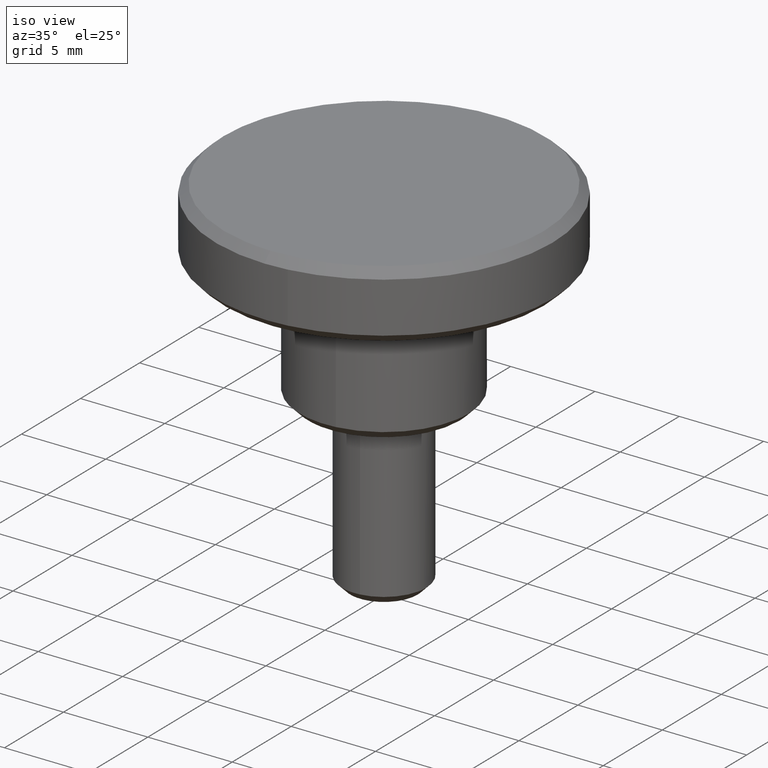
[diagram: clean part render]
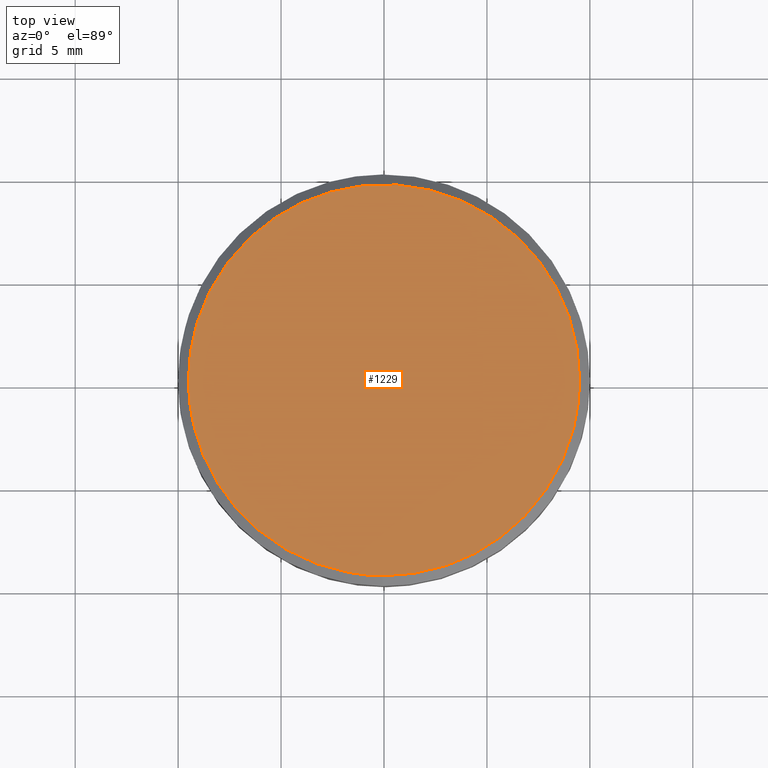
[diagram: tour spotlight — one face highlighted and labeled with its STEP entity id]
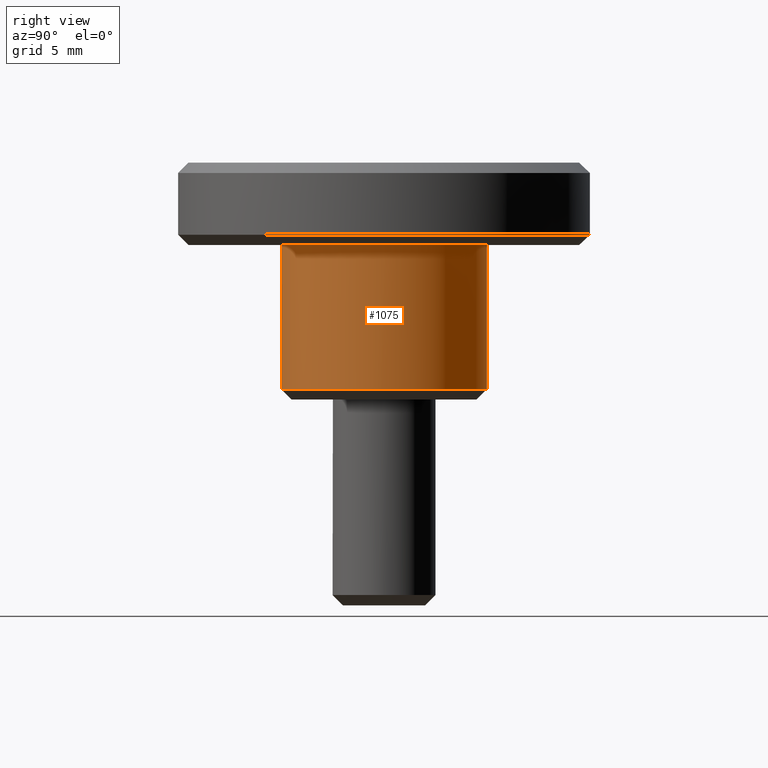
[diagram: tour spotlight — one face highlighted and labeled with its STEP entity id]
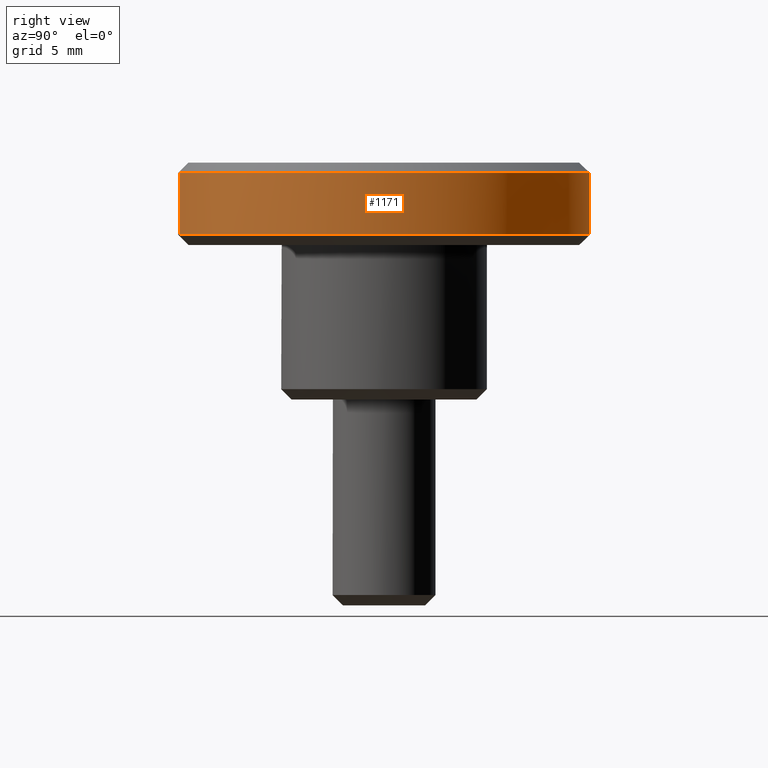
[diagram: tour spotlight — one face highlighted and labeled with its STEP entity id]
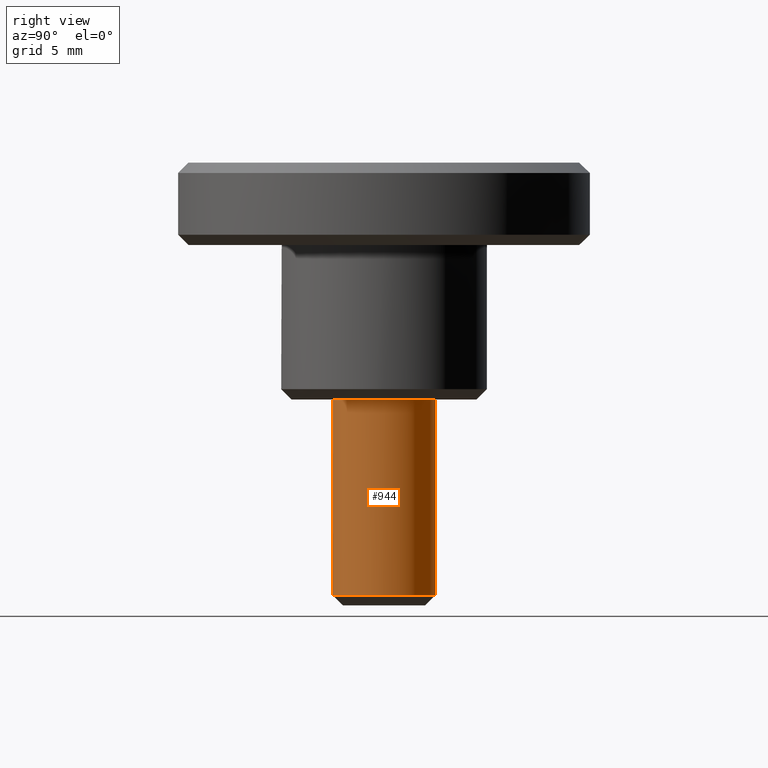
[diagram: tour spotlight — one face highlighted and labeled with its STEP entity id]
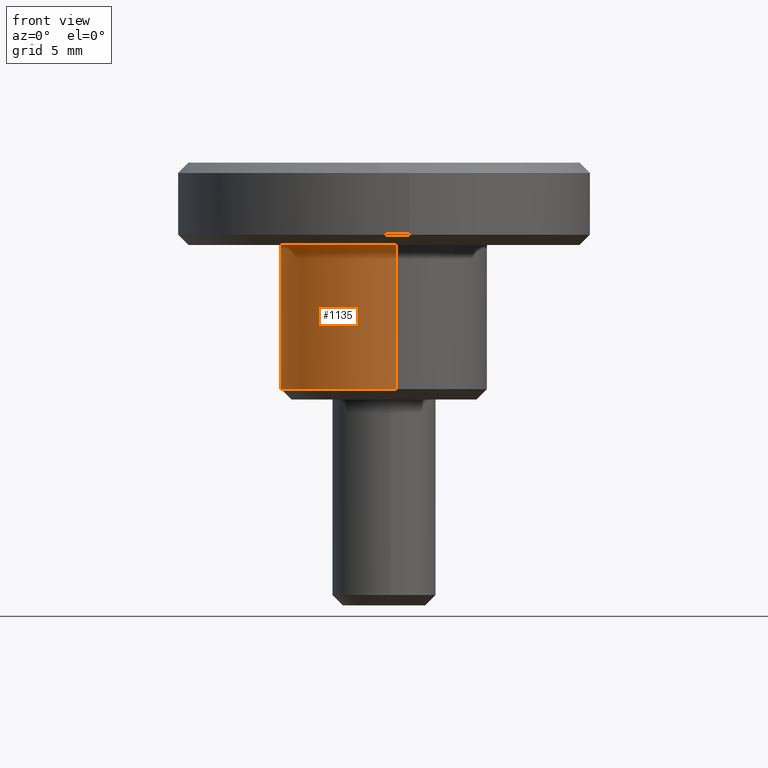
[diagram: tour spotlight — one face highlighted and labeled with its STEP entity id]
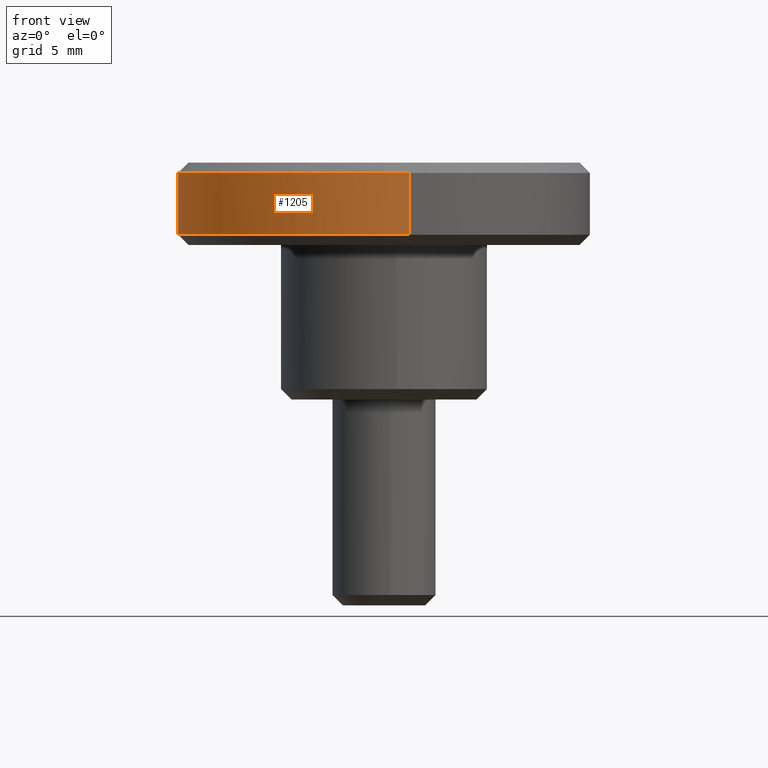
[diagram: tour spotlight — one face highlighted and labeled with its STEP entity id]
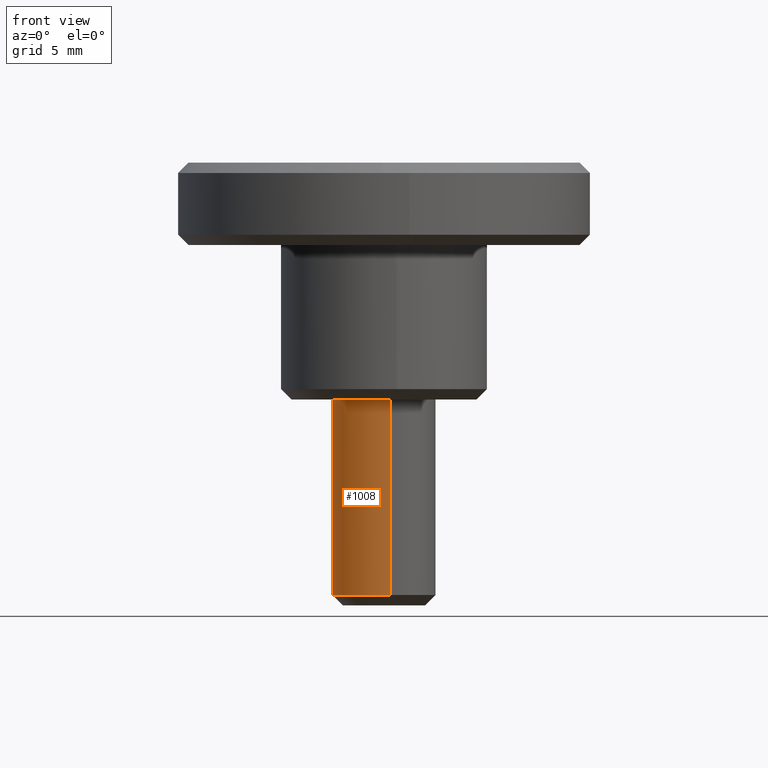
[diagram: tour spotlight — one face highlighted and labeled with its STEP entity id]
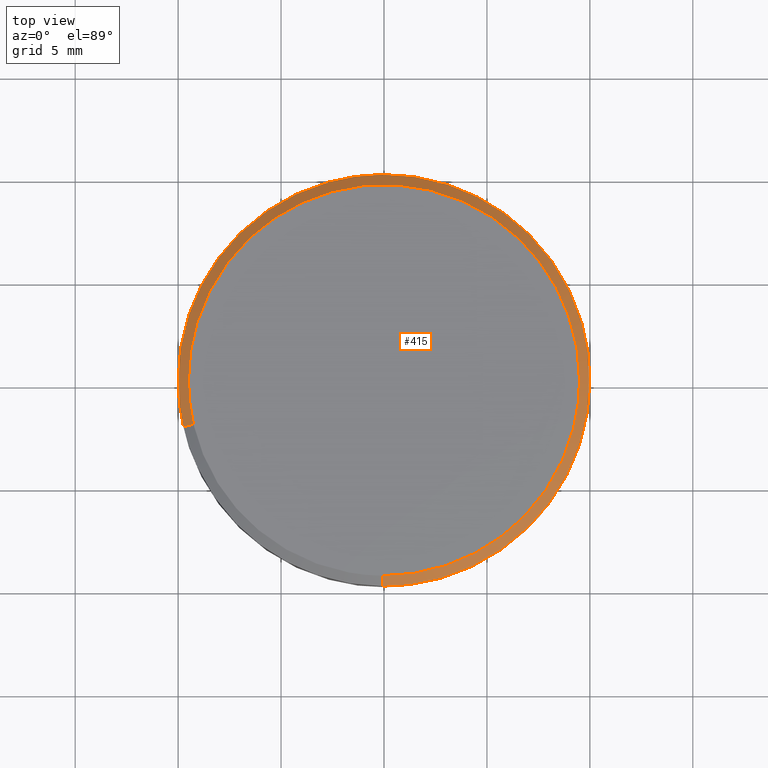
[diagram: tour spotlight — one face highlighted and labeled with its STEP entity id]
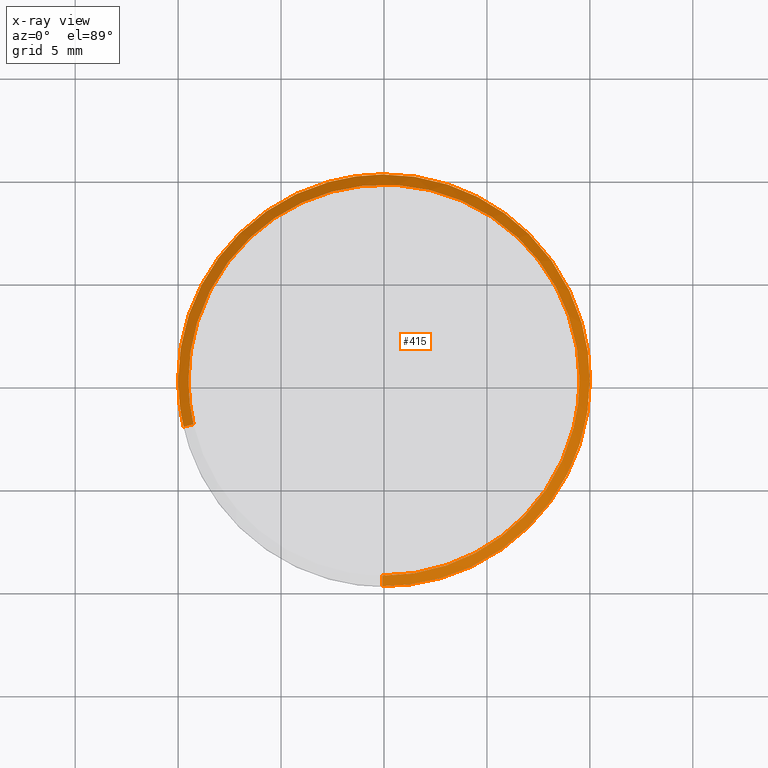
[diagram: x-ray of the same camera — body ghosted, this tour face saturated]
A machine part: a face-by-face anatomy tour. The part has 18 B-rep faces; the first image is the clean iso view, then the 8 largest visible faces are spotlighted one at a time (largest first), each with its STEP entity span.

Face 1 — top view, entity #1229. In plain terms, the highlighted face is a freeform B-spline surface patch.
Definition (entity closure, byte-faithful):
#288=CARTESIAN_POINT('',(-9.255072455196380,-2.143276428524653,11.499999999999879));
#289=VERTEX_POINT('',#288);
#295=CARTESIAN_POINT('',(-9.500000000000000,0.0,11.500000000000121));
#296=VERTEX_POINT('',#295);
#297=CARTESIAN_POINT('',(-9.500000000000000,0.0,11.500000000000121));
#298=CARTESIAN_POINT('',(-9.500000000000000,-1.085633026459575,11.500000000000124));
#299=CARTESIAN_POINT('',(-9.255072455196382,-2.143276428524653,11.499999999999876));
#307=(BOUNDED_CURVE()B_SPLINE_CURVE(2,(#297,#298,#299),.UNSPECIFIED.,.F.,.U.)B_SPLINE_CURVE_WITH_KNOTS((3,3),(0.500000000000000,0.538577028215461),.UNSPECIFIED.)CURVE()GEOMETRIC_REPRESENTATION_ITEM()RATIONAL_B_SPLINE_CURVE((1.0,0.954804200134865,0.923556557442672))REPRESENTATION_ITEM(''));
#308=EDGE_CURVE('',#296,#289,#307,.T.);
#310=CARTESIAN_POINT('',(9.500000000000000,0.0,11.500000000000121));
#311=VERTEX_POINT('',#310);
#312=CARTESIAN_POINT('',(9.500000000000000,0.0,11.500000000000121));
#313=CARTESIAN_POINT('',(9.500000000000000,9.500000000000000,11.500000000000119));
#314=CARTESIAN_POINT('',(0.0,9.500000000000000,11.500000000000121));
#315=CARTESIAN_POINT('',(-9.500000000000000,9.500000000000000,11.500000000000119));
#316=CARTESIAN_POINT('',(-9.500000000000000,0.0,11.500000000000121));
#324=(BOUNDED_CURVE()B_SPLINE_CURVE(2,(#312,#313,#314,#315,#316),.UNSPECIFIED.,.F.,.U.)B_SPLINE_CURVE_WITH_KNOTS((3,2,3),(0.0,0.250000000000000,0.500000000000000),.UNSPECIFIED.)CURVE()GEOMETRIC_REPRESENTATION_ITEM()RATIONAL_B_SPLINE_CURVE((1.0,0.707106781186548,1.0,0.707106781186548,1.0))REPRESENTATION_ITEM(''));
#325=EDGE_CURVE('',#311,#296,#324,.T.);
#327=CARTESIAN_POINT('',(-0.082902087252672,-9.499638269111923,11.499999999997639));
#328=VERTEX_POINT('',#327);
#329=CARTESIAN_POINT('',(-0.082902087252672,-9.499638269111923,11.499999999997637));
#330=CARTESIAN_POINT('',(-0.041451832814764,-9.500000000000000,11.500000000000124));
#331=CARTESIAN_POINT('',(0.0,-9.500000000000000,11.500000000000121));
#332=CARTESIAN_POINT('',(9.500000000000000,-9.500000000000000,11.500000000000119));
#333=CARTESIAN_POINT('',(9.500000000000000,0.0,11.500000000000121));
#341=(BOUNDED_CURVE()B_SPLINE_CURVE(2,(#329,#330,#331,#332,#333),.UNSPECIFIED.,.F.,.U.)B_SPLINE_CURVE_WITH_KNOTS((3,2,3),(0.748460105664342,0.750000000000000,1.0),.UNSPECIFIED.)CURVE()GEOMETRIC_REPRESENTATION_ITEM()RATIONAL_B_SPLINE_CURVE((0.996414028098852,0.998195901565586,1.0,0.707106781186548,1.0))REPRESENTATION_ITEM(''));
#342=EDGE_CURVE('',#328,#311,#341,.T.);
#444=CARTESIAN_POINT('',(-9.255072455196380,-2.143276428524653,11.499999999999874));
#445=CARTESIAN_POINT('',(-7.566620975602279,-9.434328843759149,11.500000000000119));
#446=CARTESIAN_POINT('',(-0.082902087252672,-9.499638269111923,11.499999999997639));
#454=(BOUNDED_CURVE()B_SPLINE_CURVE(2,(#444,#445,#446),.UNSPECIFIED.,.F.,.U.)B_SPLINE_CURVE_WITH_KNOTS((3,3),(0.538577028215460,0.748460105664342),.UNSPECIFIED.)CURVE()GEOMETRIC_REPRESENTATION_ITEM()RATIONAL_B_SPLINE_CURVE((0.923556557442673,0.753549905436432,0.996414028098854))REPRESENTATION_ITEM(''));
#455=EDGE_CURVE('',#289,#328,#454,.T.);
#1218=CARTESIAN_POINT('',(-10.449049963174311,-10.448670594845110,11.500000000000121));
#1219=CARTESIAN_POINT('',(10.449050472794029,-10.448670594845110,11.500000000000121));
#1220=CARTESIAN_POINT('',(-10.449049963174311,10.449032424841221,11.500000000000121));
#1221=CARTESIAN_POINT('',(10.449050472794029,10.449032424841221,11.500000000000121));
#1222=B_SPLINE_SURFACE_WITH_KNOTS('',1,1,((#1218,#1220),(#1219,#1221)),.UNSPECIFIED.,.F.,.F.,.U.,(2,2),(2,2),(0.0,20.898100435968342),(0.0,20.897703019686329),.UNSPECIFIED.);
#1223=ORIENTED_EDGE('',*,*,#325,.T.);
#1224=ORIENTED_EDGE('',*,*,#308,.T.);
#1225=ORIENTED_EDGE('',*,*,#455,.T.);
#1226=ORIENTED_EDGE('',*,*,#342,.T.);
#1227=EDGE_LOOP('',(#1223,#1224,#1225,#1226));
#1228=FACE_OUTER_BOUND('',#1227,.T.);
#1229=ADVANCED_FACE('',(#1228),#1222,.T.);

Face 2 — right view, entity #1075. In plain terms, the highlighted face is a freeform B-spline surface patch.
Definition (entity closure, byte-faithful):
#701=CARTESIAN_POINT('',(0.620639326116273,-4.961331154728281,0.499999999999940));
#702=VERTEX_POINT('',#701);
#759=CARTESIAN_POINT('',(-0.043630800128547,4.999809631702245,0.499999999999251));
#760=VERTEX_POINT('',#759);
#766=CARTESIAN_POINT('',(5.0,0.0,0.499999999999945));
#767=VERTEX_POINT('',#766);
#768=CARTESIAN_POINT('',(5.0,0.0,0.499999999999945));
#769=CARTESIAN_POINT('',(5.000000000000001,5.000000000000001,0.499999999999945));
#770=CARTESIAN_POINT('',(0.0,5.0,0.499999999999945));
#771=CARTESIAN_POINT('',(-0.021815815368240,5.000000000000001,0.499999999999945));
#772=CARTESIAN_POINT('',(-0.043630800128547,4.999809631702246,0.499999999999251));
#780=(BOUNDED_CURVE()B_SPLINE_CURVE(2,(#768,#769,#770,#771,#772),.UNSPECIFIED.,.F.,.U.)B_SPLINE_CURVE_WITH_KNOTS((3,2,3),(0.500000000000000,0.750000000000000,0.751539828195666),.UNSPECIFIED.)CURVE()GEOMETRIC_REPRESENTATION_ITEM()RATIONAL_B_SPLINE_CURVE((1.0,0.707106781186548,1.0,0.998195979053407,0.996414181165367))REPRESENTATION_ITEM(''));
#781=EDGE_CURVE('',#767,#760,#780,.T.);
#783=CARTESIAN_POINT('',(0.620639326116273,-4.961331154728281,0.499999999999940));
#784=CARTESIAN_POINT('',(5.000000000000001,-4.413494227686669,0.499999999999945));
#785=CARTESIAN_POINT('',(5.0,0.0,0.499999999999945));
#793=(BOUNDED_CURVE()B_SPLINE_CURVE(2,(#783,#784,#785),.UNSPECIFIED.,.F.,.U.)B_SPLINE_CURVE_WITH_KNOTS((3,3),(0.271473882450313,0.500000000000000),.UNSPECIFIED.)CURVE()GEOMETRIC_REPRESENTATION_ITEM()RATIONAL_B_SPLINE_CURVE((0.954005520552827,0.732264999391723,1.0))REPRESENTATION_ITEM(''));
#794=EDGE_CURVE('',#702,#767,#793,.T.);
#1009=CARTESIAN_POINT('',(0.620640010399146,-4.961331069127693,0.324999999999943));
#1010=CARTESIAN_POINT('',(5.038664152512223,-4.408656290666105,0.324999999999943));
#1011=CARTESIAN_POINT('',(4.999809615320855,0.043632677491869,0.324999999999944));
#1012=CARTESIAN_POINT('',(4.956176937828985,5.043442292812725,0.324999999999944));
#1013=CARTESIAN_POINT('',(-0.043632677491869,4.999809615320855,0.324999999999944));
#1014=CARTESIAN_POINT('',(0.620640010399146,-4.961331069127693,7.679375000000002));
#1015=CARTESIAN_POINT('',(5.038664152512223,-4.408656290666105,7.679375000000002));
#1016=CARTESIAN_POINT('',(4.999809615320855,0.043632677491869,7.679375000000003));
#1017=CARTESIAN_POINT('',(4.956176937828985,5.043442292812725,7.679375000000004));
#1018=CARTESIAN_POINT('',(-0.043632677491869,4.999809615320855,7.679375000000003));
#1026=(BOUNDED_SURFACE()B_SPLINE_SURFACE(2,1,((#1009,#1014),(#1010,#1015),(#1011,#1016),(#1012,#1017),(#1013,#1018)),.UNSPECIFIED.,.F.,.F.,.U.)B_SPLINE_SURFACE_WITH_KNOTS((3,2,3),(2,2),(0.0,7.621529547664946,15.905800795126851),(0.0,7.354375000000061),.UNSPECIFIED.)GEOMETRIC_REPRESENTATION_ITEM()RATIONAL_B_SPLINE_SURFACE(((0.956886118190660,0.956886118190660),(0.730538238691624,0.730538238691624),(1.0,1.0),(0.707106781186548,0.707106781186548),(1.0,1.0)))REPRESENTATION_ITEM('')SURFACE());
#1027=ORIENTED_EDGE('',*,*,#794,.T.);
#1028=ORIENTED_EDGE('',*,*,#781,.T.);
#1029=CARTESIAN_POINT('',(-0.043628661551656,4.999809650364210,7.500000000000000));
#1030=VERTEX_POINT('',#1029);
#1031=CARTESIAN_POINT('',(-0.043630800128547,4.999809631702245,0.499999999999251));
#1032=CARTESIAN_POINT('',(-0.043628661551656,4.999809650364210,7.500000000000000));
#1033=QUASI_UNIFORM_CURVE('',1,(#1031,#1032),.UNSPECIFIED.,.F.,.U.);
#1034=EDGE_CURVE('',#760,#1030,#1033,.T.);
#1035=ORIENTED_EDGE('',*,*,#1034,.T.);
#1036=CARTESIAN_POINT('',(5.0,0.0,7.500000000000000));
#1037=VERTEX_POINT('',#1036);
#1038=CARTESIAN_POINT('',(-0.043628661551656,4.999809650364210,7.500000000000000));
#1039=CARTESIAN_POINT('',(-0.021814746018728,5.0,7.500000000000000));
#1040=CARTESIAN_POINT('',(0.0,5.0,7.500000000000000));
#1041=CARTESIAN_POINT('',(5.000000000000001,5.000000000000001,7.500000000000000));
#1042=CARTESIAN_POINT('',(5.0,0.0,7.500000000000000));
#1050=(BOUNDED_CURVE()B_SPLINE_CURVE(2,(#1038,#1039,#1040,#1041,#1042),.UNSPECIFIED.,.F.,.U.)B_SPLINE_CURVE_WITH_KNOTS((3,2,3),(0.248460247146196,0.250000000000000,0.500000000000000),.UNSPECIFIED.)CURVE()GEOMETRIC_REPRESENTATION_ITEM()RATIONAL_B_SPLINE_CURVE((0.996414355527691,0.998196067321889,1.0,0.707106781186548,1.0))REPRESENTATION_ITEM(''));
#1051=EDGE_CURVE('',#1030,#1037,#1050,.T.);
#1052=ORIENTED_EDGE('',*,*,#1051,.T.);
#1053=CARTESIAN_POINT('',(0.620634546352657,-4.961331752649010,7.500000000000000));
#1054=VERTEX_POINT('',#1053);
#1055=CARTESIAN_POINT('',(5.0,0.0,7.500000000000000));
#1056=CARTESIAN_POINT('',(5.0,-4.413497899335222,7.500000000000000));
#1057=CARTESIAN_POINT('',(0.620634546352657,-4.961331752649010,7.500000000000000));
#1065=(BOUNDED_CURVE()B_SPLINE_CURVE(2,(#1055,#1056,#1057),.UNSPECIFIED.,.F.,.U.)B_SPLINE_CURVE_WITH_KNOTS((3,3),(0.500000000000000,0.728526256763575),.UNSPECIFIED.)CURVE()GEOMETRIC_REPRESENTATION_ITEM()RATIONAL_B_SPLINE_CURVE((1.0,0.732264836292508,0.954005790713464))REPRESENTATION_ITEM(''));
#1066=EDGE_CURVE('',#1037,#1054,#1065,.T.);
#1067=ORIENTED_EDGE('',*,*,#1066,.T.);
#1068=CARTESIAN_POINT('',(0.620639326116273,-4.961331154728281,0.499999999999940));
#1069=CARTESIAN_POINT('',(0.620634546352657,-4.961331752649010,7.500000000000000));
#1070=QUASI_UNIFORM_CURVE('',1,(#1068,#1069),.UNSPECIFIED.,.F.,.U.);
#1071=EDGE_CURVE('',#702,#1054,#1070,.T.);
#1072=ORIENTED_EDGE('',*,*,#1071,.F.);
#1073=EDGE_LOOP('',(#1027,#1028,#1035,#1052,#1067,#1072));
#1074=FACE_OUTER_BOUND('',#1073,.T.);
#1075=ADVANCED_FACE('',(#1074),#1026,.T.);

Face 3 — right view, entity #1171. In plain terms, the highlighted face is a freeform B-spline surface patch.
Definition (entity closure, byte-faithful):
#351=CARTESIAN_POINT('',(1.241278290749142,-9.922662354676380,11.000000000000099));
#352=VERTEX_POINT('',#351);
#368=CARTESIAN_POINT('',(10.0,0.0,11.000000000000121));
#369=VERTEX_POINT('',#368);
#370=CARTESIAN_POINT('',(10.0,0.0,11.000000000000121));
#371=CARTESIAN_POINT('',(9.999999999999998,-8.826987552511923,11.000000000000119));
#372=CARTESIAN_POINT('',(1.241278290749142,-9.922662354676380,11.000000000000099));
#380=(BOUNDED_CURVE()B_SPLINE_CURVE(2,(#370,#371,#372),.UNSPECIFIED.,.F.,.U.)B_SPLINE_CURVE_WITH_KNOTS((3,3),(0.500000000000000,0.728526100433277),.UNSPECIFIED.)CURVE()GEOMETRIC_REPRESENTATION_ITEM()RATIONAL_B_SPLINE_CURVE((1.0,0.732265019444844,0.954005487336481))REPRESENTATION_ITEM(''));
#381=EDGE_CURVE('',#369,#352,#380,.T.);
#383=CARTESIAN_POINT('',(-0.087258805515290,9.999619287793767,11.000000000000149));
#384=VERTEX_POINT('',#383);
#385=CARTESIAN_POINT('',(-0.087258805515290,9.999619287793767,11.000000000000151));
#386=CARTESIAN_POINT('',(-0.043630233285768,10.000000000000002,11.000000000000121));
#387=CARTESIAN_POINT('',(0.0,10.0,11.000000000000121));
#388=CARTESIAN_POINT('',(10.000000000000002,10.000000000000002,11.000000000000119));
#389=CARTESIAN_POINT('',(10.0,0.0,11.000000000000121));
#397=(BOUNDED_CURVE()B_SPLINE_CURVE(2,(#385,#386,#387,#388,#389),.UNSPECIFIED.,.F.,.U.)B_SPLINE_CURVE_WITH_KNOTS((3,2,3),(0.248460221033578,0.250000000000000,0.500000000000000),.UNSPECIFIED.)CURVE()GEOMETRIC_REPRESENTATION_ITEM()RATIONAL_B_SPLINE_CURVE((0.996414295095714,0.998196036729054,1.0,0.707106781186548,1.0))REPRESENTATION_ITEM(''));
#398=EDGE_CURVE('',#384,#369,#397,.T.);
#562=CARTESIAN_POINT('',(-0.087258337325771,9.999619291878959,8.000000000000119));
#563=VERTEX_POINT('',#562);
#577=CARTESIAN_POINT('',(10.0,0.0,8.000000000000119));
#578=VERTEX_POINT('',#577);
#579=CARTESIAN_POINT('',(10.0,0.0,8.000000000000119));
#580=CARTESIAN_POINT('',(10.000000000000002,10.000000000000002,8.000000000000119));
#581=CARTESIAN_POINT('',(0.0,10.0,8.000000000000119));
#582=CARTESIAN_POINT('',(-0.043629999177642,10.000000000000002,8.000000000000119));
#583=CARTESIAN_POINT('',(-0.087258337325771,9.999619291878959,8.000000000000119));
#591=(BOUNDED_CURVE()B_SPLINE_CURVE(2,(#579,#580,#581,#582,#583),.UNSPECIFIED.,.F.,.U.)B_SPLINE_CURVE_WITH_KNOTS((3,2,3),(0.500000000000000,0.750000000000000,0.751539770719286),.UNSPECIFIED.)CURVE()GEOMETRIC_REPRESENTATION_ITEM()RATIONAL_B_SPLINE_CURVE((1.0,0.707106781186548,1.0,0.998196046391175,0.996414314181917))REPRESENTATION_ITEM(''));
#592=EDGE_CURVE('',#578,#563,#591,.T.);
#594=CARTESIAN_POINT('',(8.188661127107650,-5.739845724877757,8.000000000000160));
#595=VERTEX_POINT('',#594);
#596=CARTESIAN_POINT('',(8.188661127107650,-5.739845724877757,8.000000000000160));
#597=CARTESIAN_POINT('',(10.000000000000002,-3.155727452816521,8.000000000000119));
#598=CARTESIAN_POINT('',(10.0,0.0,8.000000000000119));
#606=(BOUNDED_CURVE()B_SPLINE_CURVE(2,(#596,#597,#598),.UNSPECIFIED.,.F.,.U.)B_SPLINE_CURVE_WITH_KNOTS((3,3),(0.401326273797088,0.500000000000000),.UNSPECIFIED.)CURVE()GEOMETRIC_REPRESENTATION_ITEM()RATIONAL_B_SPLINE_CURVE((0.860049271925852,0.884396538880448,1.0))REPRESENTATION_ITEM(''));
#607=EDGE_CURVE('',#595,#578,#606,.T.);
#645=CARTESIAN_POINT('',(1.241273483490002,-9.922662956038625,8.000000000000119));
#646=VERTEX_POINT('',#645);
#647=CARTESIAN_POINT('',(1.241273483490001,-9.922662956038625,8.000000000000119));
#648=CARTESIAN_POINT('',(5.642649241165003,-9.372073760067680,8.000000000000121));
#649=CARTESIAN_POINT('',(8.188661127107650,-5.739845724877757,8.000000000000160));
#657=(BOUNDED_CURVE()B_SPLINE_CURVE(2,(#647,#648,#649),.UNSPECIFIED.,.F.,.U.)B_SPLINE_CURVE_WITH_KNOTS((3,3),(0.271473817862368,0.401326273797088),.UNSPECIFIED.)CURVE()GEOMETRIC_REPRESENTATION_ITEM()RATIONAL_B_SPLINE_CURVE((0.954005645893153,0.828008803495067,0.860049271925852))REPRESENTATION_ITEM(''));
#658=EDGE_CURVE('',#646,#595,#657,.T.);
#1136=CARTESIAN_POINT('',(1.241280020798293,-9.922662138255385,7.925000000000117));
#1137=CARTESIAN_POINT('',(10.077328305024446,-8.817312581332210,7.925000000000119));
#1138=CARTESIAN_POINT('',(9.999619230641709,0.087265354983739,7.925000000000117));
#1139=CARTESIAN_POINT('',(9.912353875657971,10.086884585625448,7.925000000000117));
#1140=CARTESIAN_POINT('',(-0.087265354983739,9.999619230641709,7.925000000000117));
#1141=CARTESIAN_POINT('',(1.241280020798293,-9.922662138255385,11.076875000000120));
#1142=CARTESIAN_POINT('',(10.077328305024446,-8.817312581332210,11.076875000000122));
#1143=CARTESIAN_POINT('',(9.999619230641709,0.087265354983739,11.076875000000120));
#1144=CARTESIAN_POINT('',(9.912353875657971,10.086884585625448,11.076875000000122));
#1145=CARTESIAN_POINT('',(-0.087265354983739,9.999619230641709,11.076875000000120));
#1153=(BOUNDED_SURFACE()B_SPLINE_SURFACE(2,1,((#1136,#1141),(#1137,#1142),(#1138,#1143),(#1139,#1144),(#1140,#1145)),.UNSPECIFIED.,.F.,.F.,.U.)B_SPLINE_SURFACE_WITH_KNOTS((3,2,3),(2,2),(0.0,15.243059095329890,31.811601590253691),(0.0,3.151875000000005),.UNSPECIFIED.)GEOMETRIC_REPRESENTATION_ITEM()RATIONAL_B_SPLINE_SURFACE(((0.956886118190660,0.956886118190660),(0.730538238691624,0.730538238691624),(1.0,1.0),(0.707106781186548,0.707106781186548),(1.0,1.0)))REPRESENTATION_ITEM('')SURFACE());
#1154=ORIENTED_EDGE('',*,*,#381,.T.);
#1155=CARTESIAN_POINT('',(1.241273483490002,-9.922662956038625,8.000000000000119));
#1156=CARTESIAN_POINT('',(1.241278290749142,-9.922662354676380,11.000000000000099));
#1157=QUASI_UNIFORM_CURVE('',1,(#1155,#1156),.UNSPECIFIED.,.F.,.U.);
#1158=EDGE_CURVE('',#646,#352,#1157,.T.);
#1159=ORIENTED_EDGE('',*,*,#1158,.F.);
#1160=ORIENTED_EDGE('',*,*,#658,.T.);
#1161=ORIENTED_EDGE('',*,*,#607,.T.);
#1162=ORIENTED_EDGE('',*,*,#592,.T.);
#1163=CARTESIAN_POINT('',(-0.087258337325771,9.999619291878959,8.000000000000119));
#1164=CARTESIAN_POINT('',(-0.087258805515290,9.999619287793767,11.000000000000149));
#1165=QUASI_UNIFORM_CURVE('',1,(#1163,#1164),.UNSPECIFIED.,.F.,.U.);
#1166=EDGE_CURVE('',#563,#384,#1165,.T.);
#1167=ORIENTED_EDGE('',*,*,#1166,.T.);
#1168=ORIENTED_EDGE('',*,*,#398,.T.);
#1169=EDGE_LOOP('',(#1154,#1159,#1160,#1161,#1162,#1167,#1168));
#1170=FACE_OUTER_BOUND('',#1169,.T.);
#1171=ADVANCED_FACE('',(#1170),#1153,.T.);

Face 4 — right view, entity #944. In plain terms, the highlighted face is a freeform B-spline surface patch.
Definition (entity closure, byte-faithful):
#68=CARTESIAN_POINT('',(0.310320005214538,-2.480665534561974,-9.499999999999998));
#69=VERTEX_POINT('',#68);
#126=CARTESIAN_POINT('',(-0.021814068054723,2.499904827470244,-9.500000000002059));
#127=VERTEX_POINT('',#126);
#133=CARTESIAN_POINT('',(2.500000000000000,0.0,-9.500000000000000));
#134=VERTEX_POINT('',#133);
#135=CARTESIAN_POINT('',(2.500000000000000,0.0,-9.500000000000000));
#136=CARTESIAN_POINT('',(2.500000000000000,2.500000000000000,-9.500000000000000));
#137=CARTESIAN_POINT('',(0.0,2.500000000000000,-9.500000000000000));
#138=CARTESIAN_POINT('',(-0.010907241641329,2.500000000000000,-9.500000000000000));
#139=CARTESIAN_POINT('',(-0.021814068054723,2.499904827470244,-9.500000000002059));
#147=(BOUNDED_CURVE()B_SPLINE_CURVE(2,(#135,#136,#137,#138,#139),.UNSPECIFIED.,.F.,.U.)B_SPLINE_CURVE_WITH_KNOTS((3,2,3),(0.500000000000000,0.750000000000000,0.751539734342525),.UNSPECIFIED.)CURVE()GEOMETRIC_REPRESENTATION_ITEM()RATIONAL_B_SPLINE_CURVE((1.0,0.707106781186548,1.0,0.998196089009201,0.996414398368029))REPRESENTATION_ITEM(''));
#148=EDGE_CURVE('',#134,#127,#147,.T.);
#150=CARTESIAN_POINT('',(0.310320005214538,-2.480665534561974,-9.499999999999998));
#151=CARTESIAN_POINT('',(2.500000000000001,-2.206746500348739,-9.500000000000000));
#152=CARTESIAN_POINT('',(2.500000000000000,0.0,-9.500000000000000));
#160=(BOUNDED_CURVE()B_SPLINE_CURVE(2,(#150,#151,#152),.UNSPECIFIED.,.F.,.U.)B_SPLINE_CURVE_WITH_KNOTS((3,3),(0.271473928972736,0.500000000000000),.UNSPECIFIED.)CURVE()GEOMETRIC_REPRESENTATION_ITEM()RATIONAL_B_SPLINE_CURVE((0.954005430270770,0.732265053896132,1.0))REPRESENTATION_ITEM(''));
#161=EDGE_CURVE('',#69,#134,#160,.T.);
#878=CARTESIAN_POINT('',(0.310320005199573,-2.480665534563847,-9.737500000000001));
#879=CARTESIAN_POINT('',(2.519332076256112,-2.204328145333053,-9.737500000000003));
#880=CARTESIAN_POINT('',(2.499904807660427,0.021816338745935,-9.737500000000003));
#881=CARTESIAN_POINT('',(2.478088468914493,2.521721146406362,-9.737500000000003));
#882=CARTESIAN_POINT('',(-0.021816338745935,2.499904807660427,-9.737500000000003));
#883=CARTESIAN_POINT('',(0.310320005199573,-2.480665534563847,0.243437500000001));
#884=CARTESIAN_POINT('',(2.519332076256112,-2.204328145333053,0.243437500000001));
#885=CARTESIAN_POINT('',(2.499904807660427,0.021816338745935,0.243437500000001));
#886=CARTESIAN_POINT('',(2.478088468914493,2.521721146406362,0.243437500000001));
#887=CARTESIAN_POINT('',(-0.021816338745935,2.499904807660427,0.243437500000001));
#895=(BOUNDED_SURFACE()B_SPLINE_SURFACE(2,1,((#878,#883),(#879,#884),(#880,#885),(#881,#886),(#882,#887)),.UNSPECIFIED.,.F.,.F.,.U.)B_SPLINE_SURFACE_WITH_KNOTS((3,2,3),(2,2),(0.0,3.810764773832473,7.952900397563423),(0.0,9.980937500000005),.UNSPECIFIED.)GEOMETRIC_REPRESENTATION_ITEM()RATIONAL_B_SPLINE_SURFACE(((0.956886118190660,0.956886118190660),(0.730538238691624,0.730538238691624),(1.0,1.0),(0.707106781186548,0.707106781186548),(1.0,1.0)))REPRESENTATION_ITEM('')SURFACE());
#896=ORIENTED_EDGE('',*,*,#161,.T.);
#897=ORIENTED_EDGE('',*,*,#148,.T.);
#898=CARTESIAN_POINT('',(-0.021812366237410,2.499904842321671,-3.747003E-016));
#899=VERTEX_POINT('',#898);
#900=CARTESIAN_POINT('',(-0.021814068054723,2.499904827470244,-9.500000000002059));
#901=CARTESIAN_POINT('',(-0.021812366237410,2.499904842321671,-3.747003E-016));
#902=QUASI_UNIFORM_CURVE('',1,(#900,#901),.UNSPECIFIED.,.F.,.U.);
#903=EDGE_CURVE('',#127,#899,#902,.T.);
#904=ORIENTED_EDGE('',*,*,#903,.T.);
#905=CARTESIAN_POINT('',(2.500000000000000,0.0,0.0));
#906=VERTEX_POINT('',#905);
#907=CARTESIAN_POINT('',(-0.021812366237410,2.499904842321671,-3.747003E-016));
#908=CARTESIAN_POINT('',(-0.010906390684075,2.500000000000000,0.0));
#909=CARTESIAN_POINT('',(0.0,2.500000000000000,0.0));
#910=CARTESIAN_POINT('',(2.500000000000000,2.500000000000000,0.0));
#911=CARTESIAN_POINT('',(2.500000000000000,0.0,0.0));
#919=(BOUNDED_CURVE()B_SPLINE_CURVE(2,(#907,#908,#909,#910,#911),.UNSPECIFIED.,.F.,.U.)B_SPLINE_CURVE_WITH_KNOTS((3,2,3),(0.248460385567234,0.250000000000000,0.500000000000000),.UNSPECIFIED.)CURVE()GEOMETRIC_REPRESENTATION_ITEM()RATIONAL_B_SPLINE_CURVE((0.996414675873302,0.998196229492223,1.0,0.707106781186548,1.0))REPRESENTATION_ITEM(''));
#920=EDGE_CURVE('',#899,#906,#919,.T.);
#921=ORIENTED_EDGE('',*,*,#920,.T.);
#922=CARTESIAN_POINT('',(0.310320005215607,-2.480665534561841,1.740369E-016));
#923=VERTEX_POINT('',#922);
#924=CARTESIAN_POINT('',(2.500000000000000,0.0,0.0));
#925=CARTESIAN_POINT('',(2.499999999999999,-2.206746500346836,0.0));
#926=CARTESIAN_POINT('',(0.310320005215607,-2.480665534561841,1.740369E-016));
#934=(BOUNDED_CURVE()B_SPLINE_CURVE(2,(#924,#925,#926),.UNSPECIFIED.,.F.,.U.)B_SPLINE_CURVE_WITH_KNOTS((3,3),(0.500000000000000,0.728526071027120),.UNSPECIFIED.)CURVE()GEOMETRIC_REPRESENTATION_ITEM()RATIONAL_B_SPLINE_CURVE((1.0,0.732265053896301,0.954005430270490))REPRESENTATION_ITEM(''));
#935=EDGE_CURVE('',#906,#923,#934,.T.);
#936=ORIENTED_EDGE('',*,*,#935,.T.);
#937=CARTESIAN_POINT('',(0.310320005214538,-2.480665534561974,-9.499999999999998));
#938=CARTESIAN_POINT('',(0.310320005215607,-2.480665534561841,1.740369E-016));
#939=QUASI_UNIFORM_CURVE('',1,(#937,#938),.UNSPECIFIED.,.F.,.U.);
#940=EDGE_CURVE('',#69,#923,#939,.T.);
#941=ORIENTED_EDGE('',*,*,#940,.F.);
#942=EDGE_LOOP('',(#896,#897,#904,#921,#936,#941));
#943=FACE_OUTER_BOUND('',#942,.T.);
#944=ADVANCED_FACE('',(#943),#895,.T.);

Face 5 — front view, entity #1135. In plain terms, the highlighted face is a freeform B-spline surface patch.
Definition (entity closure, byte-faithful):
#699=CARTESIAN_POINT('',(-2.021077159942054,-4.573319047864791,0.500000000000183));
#700=VERTEX_POINT('',#699);
#701=CARTESIAN_POINT('',(0.620639326116273,-4.961331154728281,0.499999999999940));
#702=VERTEX_POINT('',#701);
#703=CARTESIAN_POINT('',(-2.021077159942054,-4.573319047864791,0.500000000000183));
#704=CARTESIAN_POINT('',(-1.055578086262365,-4.999999999999999,0.499999999999945));
#705=CARTESIAN_POINT('',(0.0,-5.0,0.499999999999945));
#706=CARTESIAN_POINT('',(0.311523945374245,-4.999999999999999,0.499999999999945));
#707=CARTESIAN_POINT('',(0.620639326116273,-4.961331154728281,0.499999999999940));
#715=(BOUNDED_CURVE()B_SPLINE_CURVE(2,(#703,#704,#705,#706,#707),.UNSPECIFIED.,.F.,.U.)B_SPLINE_CURVE_WITH_KNOTS((3,2,3),(0.181361578459757,0.250000000000000,0.271473882450313),.UNSPECIFIED.)CURVE()GEOMETRIC_REPRESENTATION_ITEM()RATIONAL_B_SPLINE_CURVE((0.883326595751699,0.919585087123215,1.0,0.974841781794825,0.954005520552827))REPRESENTATION_ITEM(''));
#716=EDGE_CURVE('',#700,#702,#715,.T.);
#759=CARTESIAN_POINT('',(-0.043630800128547,4.999809631702245,0.499999999999251));
#760=VERTEX_POINT('',#759);
#817=CARTESIAN_POINT('',(-5.0,0.0,0.499999999999945));
#818=VERTEX_POINT('',#817);
#819=CARTESIAN_POINT('',(-5.0,0.0,0.499999999999945));
#820=CARTESIAN_POINT('',(-5.0,-3.256850012954106,0.499999999999945));
#821=CARTESIAN_POINT('',(-2.021077159942054,-4.573319047864791,0.500000000000183));
#829=(BOUNDED_CURVE()B_SPLINE_CURVE(2,(#819,#820,#821),.UNSPECIFIED.,.F.,.U.)B_SPLINE_CURVE_WITH_KNOTS((3,3),(0.0,0.181361578459757),.UNSPECIFIED.)CURVE()GEOMETRIC_REPRESENTATION_ITEM()RATIONAL_B_SPLINE_CURVE((1.0,0.787521694063333,0.883326595751699))REPRESENTATION_ITEM(''));
#830=EDGE_CURVE('',#818,#700,#829,.T.);
#832=CARTESIAN_POINT('',(-0.043630800128547,4.999809631702246,0.499999999999251));
#833=CARTESIAN_POINT('',(-5.000000000000001,4.956557914168263,0.499999999999945));
#834=CARTESIAN_POINT('',(-5.0,0.0,0.499999999999945));
#842=(BOUNDED_CURVE()B_SPLINE_CURVE(2,(#832,#833,#834),.UNSPECIFIED.,.F.,.U.)B_SPLINE_CURVE_WITH_KNOTS((3,3),(0.751539828195666,1.0),.UNSPECIFIED.)CURVE()GEOMETRIC_REPRESENTATION_ITEM()RATIONAL_B_SPLINE_CURVE((0.996414181165367,0.708910802133141,1.0))REPRESENTATION_ITEM(''));
#843=EDGE_CURVE('',#760,#818,#842,.T.);
#1029=CARTESIAN_POINT('',(-0.043628661551656,4.999809650364210,7.500000000000000));
#1030=VERTEX_POINT('',#1029);
#1031=CARTESIAN_POINT('',(-0.043630800128547,4.999809631702245,0.499999999999251));
#1032=CARTESIAN_POINT('',(-0.043628661551656,4.999809650364210,7.500000000000000));
#1033=QUASI_UNIFORM_CURVE('',1,(#1031,#1032),.UNSPECIFIED.,.F.,.U.);
#1034=EDGE_CURVE('',#760,#1030,#1033,.T.);
#1053=CARTESIAN_POINT('',(0.620634546352657,-4.961331752649010,7.500000000000000));
#1054=VERTEX_POINT('',#1053);
#1068=CARTESIAN_POINT('',(0.620639326116273,-4.961331154728281,0.499999999999940));
#1069=CARTESIAN_POINT('',(0.620634546352657,-4.961331752649010,7.500000000000000));
#1070=QUASI_UNIFORM_CURVE('',1,(#1068,#1069),.UNSPECIFIED.,.F.,.U.);
#1071=EDGE_CURVE('',#702,#1054,#1070,.T.);
#1076=CARTESIAN_POINT('',(-0.043632677491869,4.999809615320855,0.324999999999944));
#1077=CARTESIAN_POINT('',(-5.043442292812725,4.956176937828985,0.324999999999944));
#1078=CARTESIAN_POINT('',(-4.999809615320855,-0.043632677491869,0.324999999999944));
#1079=CARTESIAN_POINT('',(-4.956176937828985,-5.043442292812725,0.324999999999944));
#1080=CARTESIAN_POINT('',(0.043632677491869,-4.999809615320855,0.324999999999944));
#1081=CARTESIAN_POINT('',(0.333250794790868,-4.997282156301378,0.324999999999943));
#1082=CARTESIAN_POINT('',(0.620640010399146,-4.961331069127693,0.324999999999943));
#1083=CARTESIAN_POINT('',(-0.043632677491869,4.999809615320855,7.679375000000003));
#1084=CARTESIAN_POINT('',(-5.043442292812725,4.956176937828985,7.679375000000004));
#1085=CARTESIAN_POINT('',(-4.999809615320855,-0.043632677491869,7.679375000000003));
#1086=CARTESIAN_POINT('',(-4.956176937828985,-5.043442292812725,7.679375000000004));
#1087=CARTESIAN_POINT('',(0.043632677491869,-4.999809615320855,7.679375000000003));
#1088=CARTESIAN_POINT('',(0.333250794790868,-4.997282156301378,7.679375000000003));
#1089=CARTESIAN_POINT('',(0.620640010399146,-4.961331069127693,7.679375000000002));
#1097=(BOUNDED_SURFACE()B_SPLINE_SURFACE(2,1,((#1076,#1083),(#1077,#1084),(#1078,#1085),(#1079,#1086),(#1080,#1087),(#1081,#1088),(#1082,#1089)),.UNSPECIFIED.,.F.,.F.,.U.)B_SPLINE_SURFACE_WITH_KNOTS((3,2,2,3),(2,2),(0.0,8.284271247461899,16.568542494923800,17.231284194720750),(0.0,7.354375000000061),.UNSPECIFIED.)GEOMETRIC_REPRESENTATION_ITEM()RATIONAL_B_SPLINE_SURFACE(((1.0,1.0),(0.707106781186548,0.707106781186548),(1.0,1.0),(0.707106781186548,0.707106781186548),(1.0,1.0),(0.976568542494924,0.976568542494924),(0.956886118190660,0.956886118190660)))REPRESENTATION_ITEM('')SURFACE());
#1098=ORIENTED_EDGE('',*,*,#830,.T.);
#1099=ORIENTED_EDGE('',*,*,#716,.T.);
#1100=ORIENTED_EDGE('',*,*,#1071,.T.);
#1101=CARTESIAN_POINT('',(-5.0,0.0,7.500000000000000));
#1102=VERTEX_POINT('',#1101);
#1103=CARTESIAN_POINT('',(0.620634546352657,-4.961331752649010,7.500000000000000));
#1104=CARTESIAN_POINT('',(0.311521873663028,-5.0,7.500000000000001));
#1105=CARTESIAN_POINT('',(0.0,-5.0,7.500000000000000));
#1106=CARTESIAN_POINT('',(-5.000000000000001,-5.000000000000001,7.500000000000000));
#1107=CARTESIAN_POINT('',(-5.0,0.0,7.500000000000000));
#1115=(BOUNDED_CURVE()B_SPLINE_CURVE(2,(#1103,#1104,#1105,#1106,#1107),.UNSPECIFIED.,.F.,.U.)B_SPLINE_CURVE_WITH_KNOTS((3,2,3),(0.728526256763575,0.750000000000000,1.0),.UNSPECIFIED.)CURVE()GEOMETRIC_REPRESENTATION_ITEM()RATIONAL_B_SPLINE_CURVE((0.954005790713464,0.974841944894039,1.0,0.707106781186548,1.0))REPRESENTATION_ITEM(''));
#1116=EDGE_CURVE('',#1054,#1102,#1115,.T.);
#1117=ORIENTED_EDGE('',*,*,#1116,.T.);
#1118=CARTESIAN_POINT('',(-5.0,0.0,7.500000000000000));
#1119=CARTESIAN_POINT('',(-4.999999999999999,4.956560034326192,7.500000000000000));
#1120=CARTESIAN_POINT('',(-0.043628661551656,4.999809650364210,7.500000000000000));
#1128=(BOUNDED_CURVE()B_SPLINE_CURVE(2,(#1118,#1119,#1120),.UNSPECIFIED.,.F.,.U.)B_SPLINE_CURVE_WITH_KNOTS((3,3),(0.0,0.248460247146196),.UNSPECIFIED.)CURVE()GEOMETRIC_REPRESENTATION_ITEM()RATIONAL_B_SPLINE_CURVE((1.0,0.708910713864659,0.996414355527691))REPRESENTATION_ITEM(''));
#1129=EDGE_CURVE('',#1102,#1030,#1128,.T.);
#1130=ORIENTED_EDGE('',*,*,#1129,.T.);
#1131=ORIENTED_EDGE('',*,*,#1034,.F.);
#1132=ORIENTED_EDGE('',*,*,#843,.T.);
#1133=EDGE_LOOP('',(#1098,#1099,#1100,#1117,#1130,#1131,#1132));
#1134=FACE_OUTER_BOUND('',#1133,.T.);
#1135=ADVANCED_FACE('',(#1134),#1097,.T.);

Face 6 — front view, entity #1205. In plain terms, the highlighted face is a freeform B-spline surface patch.
Definition (entity closure, byte-faithful):
#271=CARTESIAN_POINT('',(-9.742181531784778,-2.256080451086446,10.999999999998970));
#272=VERTEX_POINT('',#271);
#273=CARTESIAN_POINT('',(-10.0,0.0,11.000000000000121));
#274=VERTEX_POINT('',#273);
#275=CARTESIAN_POINT('',(-9.742181531784778,-2.256080451086447,10.999999999998973));
#276=CARTESIAN_POINT('',(-10.000000000000002,-1.142771606807493,11.000000000000124));
#277=CARTESIAN_POINT('',(-10.0,0.0,11.000000000000121));
#285=(BOUNDED_CURVE()B_SPLINE_CURVE(2,(#275,#276,#277),.UNSPECIFIED.,.F.,.U.)B_SPLINE_CURVE_WITH_KNOTS((3,3),(0.961422971784283,1.0),.UNSPECIFIED.)CURVE()GEOMETRIC_REPRESENTATION_ITEM()RATIONAL_B_SPLINE_CURVE((0.923556557442257,0.954804200134566,1.0))REPRESENTATION_ITEM(''));
#286=EDGE_CURVE('',#272,#274,#285,.T.);
#344=CARTESIAN_POINT('',(-0.087265355013846,-9.999619230645545,10.999999999996030));
#345=VERTEX_POINT('',#344);
#351=CARTESIAN_POINT('',(1.241278290749142,-9.922662354676380,11.000000000000099));
#352=VERTEX_POINT('',#351);
#353=CARTESIAN_POINT('',(1.241278290749142,-9.922662354676380,11.000000000000099));
#354=CARTESIAN_POINT('',(0.623048400184220,-10.0,11.000000000000117));
#355=CARTESIAN_POINT('',(0.0,-10.0,11.000000000000121));
#356=CARTESIAN_POINT('',(-0.043633508237107,-10.0,11.000000000000119));
#357=CARTESIAN_POINT('',(-0.087265355013846,-9.999619230645545,10.999999999996028));
#365=(BOUNDED_CURVE()B_SPLINE_CURVE(2,(#353,#354,#355,#356,#357),.UNSPECIFIED.,.F.,.U.)B_SPLINE_CURVE_WITH_KNOTS((3,2,3),(0.728526100433277,0.750000000000000,0.751539894336047),.UNSPECIFIED.)CURVE()GEOMETRIC_REPRESENTATION_ITEM()RATIONAL_B_SPLINE_CURVE((0.954005487336481,0.974841761741703,1.0,0.998195901565130,0.996414028097953))REPRESENTATION_ITEM(''));
#366=EDGE_CURVE('',#352,#345,#365,.T.);
#383=CARTESIAN_POINT('',(-0.087258805515290,9.999619287793767,11.000000000000149));
#384=VERTEX_POINT('',#383);
#400=CARTESIAN_POINT('',(-10.0,0.0,11.000000000000121));
#401=CARTESIAN_POINT('',(-9.999999999999998,9.913118599007813,11.000000000000121));
#402=CARTESIAN_POINT('',(-0.087258805515290,9.999619287793767,11.000000000000151));
#410=(BOUNDED_CURVE()B_SPLINE_CURVE(2,(#400,#401,#402),.UNSPECIFIED.,.F.,.U.)B_SPLINE_CURVE_WITH_KNOTS((3,3),(0.0,0.248460221033578),.UNSPECIFIED.)CURVE()GEOMETRIC_REPRESENTATION_ITEM()RATIONAL_B_SPLINE_CURVE((1.0,0.708910744457494,0.996414295095714))REPRESENTATION_ITEM(''));
#411=EDGE_CURVE('',#274,#384,#410,.T.);
#430=CARTESIAN_POINT('',(-0.087265355013846,-9.999619230645545,10.999999999996021));
#431=CARTESIAN_POINT('',(-7.964864184835776,-9.930872467097576,11.000000000000117));
#432=CARTESIAN_POINT('',(-9.742181531784778,-2.256080451086446,10.999999999998973));
#440=(BOUNDED_CURVE()B_SPLINE_CURVE(2,(#430,#431,#432),.UNSPECIFIED.,.F.,.U.)B_SPLINE_CURVE_WITH_KNOTS((3,3),(0.751539894336047,0.961422971784283),.UNSPECIFIED.)CURVE()GEOMETRIC_REPRESENTATION_ITEM()RATIONAL_B_SPLINE_CURVE((0.996414028097954,0.753549905437045,0.923556557442256))REPRESENTATION_ITEM(''));
#441=EDGE_CURVE('',#345,#272,#440,.T.);
#538=CARTESIAN_POINT('',(0.087265354984036,-9.999619230641766,8.000000000000146));
#539=VERTEX_POINT('',#538);
#545=CARTESIAN_POINT('',(-10.0,0.0,8.000000000000119));
#546=VERTEX_POINT('',#545);
#547=CARTESIAN_POINT('',(-10.0,0.0,8.000000000000119));
#548=CARTESIAN_POINT('',(-10.000000000000002,-10.000000000000002,8.000000000000119));
#549=CARTESIAN_POINT('',(0.0,-10.0,8.000000000000119));
#550=CARTESIAN_POINT('',(0.043633508207315,-9.999999999999998,8.000000000000119));
#551=CARTESIAN_POINT('',(0.087265354984036,-9.999619230641766,8.000000000000146));
#559=(BOUNDED_CURVE()B_SPLINE_CURVE(2,(#547,#548,#549,#550,#551),.UNSPECIFIED.,.F.,.U.)B_SPLINE_CURVE_WITH_KNOTS((3,2,3),(0.0,0.250000000000000,0.251539894334998),.UNSPECIFIED.)CURVE()GEOMETRIC_REPRESENTATION_ITEM()RATIONAL_B_SPLINE_CURVE((1.0,0.707106781186548,1.0,0.998195901566360,0.996414028100381))REPRESENTATION_ITEM(''));
#560=EDGE_CURVE('',#546,#539,#559,.T.);
#562=CARTESIAN_POINT('',(-0.087258337325771,9.999619291878959,8.000000000000119));
#563=VERTEX_POINT('',#562);
#564=CARTESIAN_POINT('',(-0.087258337325771,9.999619291878959,8.000000000000119));
#565=CARTESIAN_POINT('',(-10.0,9.913119063164983,8.000000000000119));
#566=CARTESIAN_POINT('',(-10.0,0.0,8.000000000000119));
#574=(BOUNDED_CURVE()B_SPLINE_CURVE(2,(#564,#565,#566),.UNSPECIFIED.,.F.,.U.)B_SPLINE_CURVE_WITH_KNOTS((3,3),(0.751539770719286,1.0),.UNSPECIFIED.)CURVE()GEOMETRIC_REPRESENTATION_ITEM()RATIONAL_B_SPLINE_CURVE((0.996414314181917,0.708910734795373,1.0))REPRESENTATION_ITEM(''));
#575=EDGE_CURVE('',#563,#546,#574,.T.);
#645=CARTESIAN_POINT('',(1.241273483490002,-9.922662956038625,8.000000000000119));
#646=VERTEX_POINT('',#645);
#660=CARTESIAN_POINT('',(0.087265354984036,-9.999619230641766,8.000000000000146));
#661=CARTESIAN_POINT('',(0.666498284524844,-9.994564341445518,8.000000000000119));
#662=CARTESIAN_POINT('',(1.241273483490001,-9.922662956038625,8.000000000000119));
#670=(BOUNDED_CURVE()B_SPLINE_CURVE(2,(#660,#661,#662),.UNSPECIFIED.,.F.,.U.)B_SPLINE_CURVE_WITH_KNOTS((3,3),(0.251539894334998,0.271473817862368),.UNSPECIFIED.)CURVE()GEOMETRIC_REPRESENTATION_ITEM()RATIONAL_B_SPLINE_CURVE((0.996414028100381,0.973347686080027,0.954005645893153))REPRESENTATION_ITEM(''));
#671=EDGE_CURVE('',#539,#646,#670,.T.);
#1155=CARTESIAN_POINT('',(1.241273483490002,-9.922662956038625,8.000000000000119));
#1156=CARTESIAN_POINT('',(1.241278290749142,-9.922662354676380,11.000000000000099));
#1157=QUASI_UNIFORM_CURVE('',1,(#1155,#1156),.UNSPECIFIED.,.F.,.U.);
#1158=EDGE_CURVE('',#646,#352,#1157,.T.);
#1163=CARTESIAN_POINT('',(-0.087258337325771,9.999619291878959,8.000000000000119));
#1164=CARTESIAN_POINT('',(-0.087258805515290,9.999619287793767,11.000000000000149));
#1165=QUASI_UNIFORM_CURVE('',1,(#1163,#1164),.UNSPECIFIED.,.F.,.U.);
#1166=EDGE_CURVE('',#563,#384,#1165,.T.);
#1172=CARTESIAN_POINT('',(-0.087265354983739,9.999619230641709,7.925000000000117));
#1173=CARTESIAN_POINT('',(-10.086884585625448,9.912353875657971,7.925000000000117));
#1174=CARTESIAN_POINT('',(-9.999619230641709,-0.087265354983739,7.925000000000117));
#1175=CARTESIAN_POINT('',(-9.912353875657971,-10.086884585625448,7.925000000000117));
#1176=CARTESIAN_POINT('',(0.087265354983739,-9.999619230641709,7.925000000000117));
#1177=CARTESIAN_POINT('',(0.666501589581736,-9.994564312602755,7.925000000000117));
#1178=CARTESIAN_POINT('',(1.241280020798293,-9.922662138255385,7.925000000000117));
#1179=CARTESIAN_POINT('',(-0.087265354983739,9.999619230641709,11.076875000000120));
#1180=CARTESIAN_POINT('',(-10.086884585625448,9.912353875657971,11.076875000000122));
#1181=CARTESIAN_POINT('',(-9.999619230641709,-0.087265354983739,11.076875000000120));
#1182=CARTESIAN_POINT('',(-9.912353875657971,-10.086884585625448,11.076875000000122));
#1183=CARTESIAN_POINT('',(0.087265354983739,-9.999619230641709,11.076875000000120));
#1184=CARTESIAN_POINT('',(0.666501589581736,-9.994564312602755,11.076875000000122));
#1185=CARTESIAN_POINT('',(1.241280020798293,-9.922662138255385,11.076875000000120));
#1193=(BOUNDED_SURFACE()B_SPLINE_SURFACE(2,1,((#1172,#1179),(#1173,#1180),(#1174,#1181),(#1175,#1182),(#1176,#1183),(#1177,#1184),(#1178,#1185)),.UNSPECIFIED.,.F.,.F.,.U.)B_SPLINE_SURFACE_WITH_KNOTS((3,2,2,3),(2,2),(0.0,16.568542494923800,33.137084989847587,34.462568389441500),(0.0,3.151875000000006),.UNSPECIFIED.)GEOMETRIC_REPRESENTATION_ITEM()RATIONAL_B_SPLINE_SURFACE(((1.0,1.0),(0.707106781186548,0.707106781186548),(1.0,1.0),(0.707106781186548,0.707106781186548),(1.0,1.0),(0.976568542494924,0.976568542494924),(0.956886118190660,0.956886118190660)))REPRESENTATION_ITEM('')SURFACE());
#1194=ORIENTED_EDGE('',*,*,#366,.T.);
#1195=ORIENTED_EDGE('',*,*,#441,.T.);
#1196=ORIENTED_EDGE('',*,*,#286,.T.);
#1197=ORIENTED_EDGE('',*,*,#411,.T.);
#1198=ORIENTED_EDGE('',*,*,#1166,.F.);
#1199=ORIENTED_EDGE('',*,*,#575,.T.);
#1200=ORIENTED_EDGE('',*,*,#560,.T.);
#1201=ORIENTED_EDGE('',*,*,#671,.T.);
#1202=ORIENTED_EDGE('',*,*,#1158,.T.);
#1203=EDGE_LOOP('',(#1194,#1195,#1196,#1197,#1198,#1199,#1200,#1201,#1202));
#1204=FACE_OUTER_BOUND('',#1203,.T.);
#1205=ADVANCED_FACE('',(#1204),#1193,.T.);

Face 7 — front view, entity #1008. In plain terms, the highlighted face is a freeform B-spline surface patch.
Definition (entity closure, byte-faithful):
#66=CARTESIAN_POINT('',(-1.010538579970695,-2.286659523932495,-9.499999999999895));
#67=VERTEX_POINT('',#66);
#68=CARTESIAN_POINT('',(0.310320005214538,-2.480665534561974,-9.499999999999998));
#69=VERTEX_POINT('',#68);
#70=CARTESIAN_POINT('',(-1.010538579970695,-2.286659523932495,-9.499999999999893));
#71=CARTESIAN_POINT('',(-0.527789043130824,-2.500000000000000,-9.500000000000002));
#72=CARTESIAN_POINT('',(0.0,-2.500000000000000,-9.500000000000000));
#73=CARTESIAN_POINT('',(0.155762318848875,-2.500000000000000,-9.500000000000002));
#74=CARTESIAN_POINT('',(0.310320005214538,-2.480665534561974,-9.499999999999998));
#82=(BOUNDED_CURVE()B_SPLINE_CURVE(2,(#70,#71,#72,#73,#74),.UNSPECIFIED.,.F.,.U.)B_SPLINE_CURVE_WITH_KNOTS((3,2,3),(0.181361578459800,0.250000000000000,0.271473928972736),.UNSPECIFIED.)CURVE()GEOMETRIC_REPRESENTATION_ITEM()RATIONAL_B_SPLINE_CURVE((0.883326595751744,0.919585087123265,1.0,0.974841727290416,0.954005430270770))REPRESENTATION_ITEM(''));
#83=EDGE_CURVE('',#67,#69,#82,.T.);
#126=CARTESIAN_POINT('',(-0.021814068054723,2.499904827470244,-9.500000000002059));
#127=VERTEX_POINT('',#126);
#184=CARTESIAN_POINT('',(-2.500000000000000,0.0,-9.500000000000000));
#185=VERTEX_POINT('',#184);
#186=CARTESIAN_POINT('',(-2.500000000000000,0.0,-9.500000000000000));
#187=CARTESIAN_POINT('',(-2.500000000000000,-1.628425006477542,-9.500000000000000));
#188=CARTESIAN_POINT('',(-1.010538579970695,-2.286659523932495,-9.499999999999893));
#196=(BOUNDED_CURVE()B_SPLINE_CURVE(2,(#186,#187,#188),.UNSPECIFIED.,.F.,.U.)B_SPLINE_CURVE_WITH_KNOTS((3,3),(0.0,0.181361578459800),.UNSPECIFIED.)CURVE()GEOMETRIC_REPRESENTATION_ITEM()RATIONAL_B_SPLINE_CURVE((1.0,0.787521694063283,0.883326595751744))REPRESENTATION_ITEM(''));
#197=EDGE_CURVE('',#185,#67,#196,.T.);
#199=CARTESIAN_POINT('',(-0.021814068054723,2.499904827470244,-9.500000000002059));
#200=CARTESIAN_POINT('',(-2.500000000000000,2.478280277621488,-9.500000000000000));
#201=CARTESIAN_POINT('',(-2.500000000000000,0.0,-9.500000000000000));
#209=(BOUNDED_CURVE()B_SPLINE_CURVE(2,(#199,#200,#201),.UNSPECIFIED.,.F.,.U.)B_SPLINE_CURVE_WITH_KNOTS((3,3),(0.751539734342525,1.0),.UNSPECIFIED.)CURVE()GEOMETRIC_REPRESENTATION_ITEM()RATIONAL_B_SPLINE_CURVE((0.996414398368029,0.708910692177347,1.0))REPRESENTATION_ITEM(''));
#210=EDGE_CURVE('',#127,#185,#209,.T.);
#898=CARTESIAN_POINT('',(-0.021812366237410,2.499904842321671,-3.747003E-016));
#899=VERTEX_POINT('',#898);
#900=CARTESIAN_POINT('',(-0.021814068054723,2.499904827470244,-9.500000000002059));
#901=CARTESIAN_POINT('',(-0.021812366237410,2.499904842321671,-3.747003E-016));
#902=QUASI_UNIFORM_CURVE('',1,(#900,#901),.UNSPECIFIED.,.F.,.U.);
#903=EDGE_CURVE('',#127,#899,#902,.T.);
#922=CARTESIAN_POINT('',(0.310320005215607,-2.480665534561841,1.740369E-016));
#923=VERTEX_POINT('',#922);
#937=CARTESIAN_POINT('',(0.310320005214538,-2.480665534561974,-9.499999999999998));
#938=CARTESIAN_POINT('',(0.310320005215607,-2.480665534561841,1.740369E-016));
#939=QUASI_UNIFORM_CURVE('',1,(#937,#938),.UNSPECIFIED.,.F.,.U.);
#940=EDGE_CURVE('',#69,#923,#939,.T.);
#945=CARTESIAN_POINT('',(0.014733115365515,2.500223769914284,-9.737500000000008));
#946=CARTESIAN_POINT('',(-0.003486108280015,2.500064773158276,-9.737499999999999));
#947=CARTESIAN_POINT('',(-2.521721146406362,2.478088468914493,-9.737500000000003));
#948=CARTESIAN_POINT('',(-2.499904807660427,-0.021816338745935,-9.737500000000003));
#949=CARTESIAN_POINT('',(-2.478088468914493,-2.521721146406362,-9.737500000000003));
#950=CARTESIAN_POINT('',(0.021816338745935,-2.499904807660427,-9.737500000000003));
#951=CARTESIAN_POINT('',(0.166625397395434,-2.498641078150688,-9.737500000000001));
#952=CARTESIAN_POINT('',(0.329435669073631,-2.478274251728600,-9.737500000000003));
#953=CARTESIAN_POINT('',(0.348654113308188,-2.475870111536502,-9.737500000000003));
#954=CARTESIAN_POINT('',(0.014733115365515,2.500223769914284,0.243437500000001));
#955=CARTESIAN_POINT('',(-0.003486108280015,2.500064773158276,0.243437500000001));
#956=CARTESIAN_POINT('',(-2.521721146406362,2.478088468914493,0.243437500000001));
#957=CARTESIAN_POINT('',(-2.499904807660427,-0.021816338745935,0.243437500000001));
#958=CARTESIAN_POINT('',(-2.478088468914493,-2.521721146406362,0.243437500000001));
#959=CARTESIAN_POINT('',(0.021816338745935,-2.499904807660427,0.243437500000001));
#960=CARTESIAN_POINT('',(0.166625397395434,-2.498641078150688,0.243437500000001));
#961=CARTESIAN_POINT('',(0.329435669073631,-2.478274251728600,0.243437500000001));
#962=CARTESIAN_POINT('',(0.348654113308188,-2.475870111536502,0.243437500000001));
#970=(BOUNDED_SURFACE()B_SPLINE_SURFACE(2,1,((#945,#954),(#946,#955),(#947,#956),(#948,#957),(#949,#958),(#950,#959),(#951,#960),(#952,#961),(#953,#962)),.UNSPECIFIED.,.F.,.F.,.U.)B_SPLINE_SURFACE_WITH_KNOTS((3,1,2,2,1,3),(2,2),(0.0,0.043082887055711,4.185218510786660,8.327354134517609,8.658724984416086,8.701803217229527),(0.0,9.980937500000005),.UNSPECIFIED.)GEOMETRIC_REPRESENTATION_ITEM()RATIONAL_B_SPLINE_SURFACE(((1.006092840318037,1.006092840318037),(1.003046420159019,1.003046420159019),(0.707106781186548,0.707106781186548),(1.0,1.0),(0.707106781186548,0.707106781186548),(1.0,1.0),(0.976568542494924,0.976568542494924),(0.954327401704971,0.954327401704971),(0.951768685219282,0.951768685219282)))REPRESENTATION_ITEM('')SURFACE());
#971=ORIENTED_EDGE('',*,*,#197,.T.);
#972=ORIENTED_EDGE('',*,*,#83,.T.);
#973=ORIENTED_EDGE('',*,*,#940,.T.);
#974=CARTESIAN_POINT('',(-2.500000000000000,0.0,0.0));
#975=VERTEX_POINT('',#974);
#976=CARTESIAN_POINT('',(0.310320005215607,-2.480665534561842,1.740369E-016));
#977=CARTESIAN_POINT('',(0.155762318849957,-2.500000000000000,0.0));
#978=CARTESIAN_POINT('',(0.0,-2.500000000000000,0.0));
#979=CARTESIAN_POINT('',(-2.500000000000000,-2.500000000000000,0.0));
#980=CARTESIAN_POINT('',(-2.500000000000000,0.0,0.0));
#988=(BOUNDED_CURVE()B_SPLINE_CURVE(2,(#976,#977,#978,#979,#980),.UNSPECIFIED.,.F.,.U.)B_SPLINE_CURVE_WITH_KNOTS((3,2,3),(0.728526071027119,0.750000000000000,1.0),.UNSPECIFIED.)CURVE()GEOMETRIC_REPRESENTATION_ITEM()RATIONAL_B_SPLINE_CURVE((0.954005430270488,0.974841727290245,1.0,0.707106781186548,1.0))REPRESENTATION_ITEM(''));
#989=EDGE_CURVE('',#923,#975,#988,.T.);
#990=ORIENTED_EDGE('',*,*,#989,.T.);
#991=CARTESIAN_POINT('',(-2.500000000000000,0.0,0.0));
#992=CARTESIAN_POINT('',(-2.500000000000000,2.478281964782639,0.0));
#993=CARTESIAN_POINT('',(-0.021812366237410,2.499904842321671,-3.747003E-016));
#1001=(BOUNDED_CURVE()B_SPLINE_CURVE(2,(#991,#992,#993),.UNSPECIFIED.,.F.,.U.)B_SPLINE_CURVE_WITH_KNOTS((3,3),(0.0,0.248460385567234),.UNSPECIFIED.)CURVE()GEOMETRIC_REPRESENTATION_ITEM()RATIONAL_B_SPLINE_CURVE((1.0,0.708910551694325,0.996414675873302))REPRESENTATION_ITEM(''));
#1002=EDGE_CURVE('',#975,#899,#1001,.T.);
#1003=ORIENTED_EDGE('',*,*,#1002,.T.);
#1004=ORIENTED_EDGE('',*,*,#903,.F.);
#1005=ORIENTED_EDGE('',*,*,#210,.T.);
#1006=EDGE_LOOP('',(#971,#972,#973,#990,#1003,#1004,#1005));
#1007=FACE_OUTER_BOUND('',#1006,.T.);
#1008=ADVANCED_FACE('',(#1007),#970,.T.);

Face 8 — top view, entity #415. An x-ray twin of the same camera follows (body ghosted, this face saturated) — the face is partly hidden behind the body. In plain terms, the highlighted face is a freeform B-spline surface patch.
Definition (entity closure, byte-faithful):
#245=CARTESIAN_POINT('',(-9.242894728281831,-2.140456327958789,11.512500000000115));
#246=CARTESIAN_POINT('',(-9.496966249899218,-1.043327506833363,11.512500000000115));
#247=CARTESIAN_POINT('',(-9.487138745071267,0.082793005540822,11.512500000000120));
#248=CARTESIAN_POINT('',(-9.404345739530445,9.569931750612090,11.512500000000120));
#249=CARTESIAN_POINT('',(0.082793005540822,9.487138745071267,11.512500000000120));
#250=CARTESIAN_POINT('',(9.569931750612090,9.404345739530445,11.512500000000120));
#251=CARTESIAN_POINT('',(9.487138745071267,-0.082793005540822,11.512500000000120));
#252=CARTESIAN_POINT('',(9.404345739530445,-9.569931750612090,11.512500000000120));
#253=CARTESIAN_POINT('',(-0.082793005540822,-9.487138745071267,11.512500000000120));
#254=CARTESIAN_POINT('',(-9.754663701873520,-2.258971054154414,10.987187500000111));
#255=CARTESIAN_POINT('',(-10.022802885804440,-1.101095409962056,10.987187500000115));
#256=CARTESIAN_POINT('',(-10.012431242780981,0.087377163719812,10.987187500000120));
#257=CARTESIAN_POINT('',(-9.925054079061164,10.099808406500786,10.987187500000116));
#258=CARTESIAN_POINT('',(0.087377163719812,10.012431242780981,10.987187500000120));
#259=CARTESIAN_POINT('',(10.099808406500786,9.925054079061164,10.987187500000116));
#260=CARTESIAN_POINT('',(10.012431242780981,-0.087377163719812,10.987187500000120));
#261=CARTESIAN_POINT('',(9.925054079061164,-10.099808406500786,10.987187500000116));
#262=CARTESIAN_POINT('',(-0.087377163719812,-10.012431242780981,10.987187500000120));
#270=(BOUNDED_SURFACE()B_SPLINE_SURFACE(2,1,((#245,#254),(#246,#255),(#247,#256),(#248,#257),(#249,#258),(#250,#259),(#251,#260),(#252,#261),(#253,#262)),.UNSPECIFIED.,.F.,.F.,.U.)B_SPLINE_SURFACE_WITH_KNOTS((3,2,2,2,3),(2,2),(0.0,2.654363350399271,19.244134290394701,35.833905230390137,52.423676170385569),(0.0,1.0),.UNSPECIFIED.)GEOMETRIC_REPRESENTATION_ITEM()RATIONAL_B_SPLINE_SURFACE(((0.921270302782944,0.921270302782944),(0.953137084989848,0.953137084989848),(1.0,1.0),(0.707106781186548,0.707106781186548),(1.0,1.0),(0.707106781186548,0.707106781186548),(1.0,1.0),(0.707106781186548,0.707106781186548),(1.0,1.0)))REPRESENTATION_ITEM('')SURFACE());
#271=CARTESIAN_POINT('',(-9.742181531784778,-2.256080451086446,10.999999999998970));
#272=VERTEX_POINT('',#271);
#273=CARTESIAN_POINT('',(-10.0,0.0,11.000000000000121));
#274=VERTEX_POINT('',#273);
#275=CARTESIAN_POINT('',(-9.742181531784778,-2.256080451086447,10.999999999998973));
#276=CARTESIAN_POINT('',(-10.000000000000002,-1.142771606807493,11.000000000000124));
#277=CARTESIAN_POINT('',(-10.0,0.0,11.000000000000121));
#285=(BOUNDED_CURVE()B_SPLINE_CURVE(2,(#275,#276,#277),.UNSPECIFIED.,.F.,.U.)B_SPLINE_CURVE_WITH_KNOTS((3,3),(0.961422971784283,1.0),.UNSPECIFIED.)CURVE()GEOMETRIC_REPRESENTATION_ITEM()RATIONAL_B_SPLINE_CURVE((0.923556557442257,0.954804200134566,1.0))REPRESENTATION_ITEM(''));
#286=EDGE_CURVE('',#272,#274,#285,.T.);
#287=ORIENTED_EDGE('',*,*,#286,.F.);
#288=CARTESIAN_POINT('',(-9.255072455196380,-2.143276428524653,11.499999999999879));
#289=VERTEX_POINT('',#288);
#290=CARTESIAN_POINT('',(-9.255072455196380,-2.143276428524653,11.499999999999879));
#291=CARTESIAN_POINT('',(-9.742181531784778,-2.256080451086446,10.999999999998970));
#292=QUASI_UNIFORM_CURVE('',1,(#290,#291),.UNSPECIFIED.,.F.,.U.);
#293=EDGE_CURVE('',#289,#272,#292,.T.);
#294=ORIENTED_EDGE('',*,*,#293,.F.);
#295=CARTESIAN_POINT('',(-9.500000000000000,0.0,11.500000000000121));
#296=VERTEX_POINT('',#295);
#297=CARTESIAN_POINT('',(-9.500000000000000,0.0,11.500000000000121));
#298=CARTESIAN_POINT('',(-9.500000000000000,-1.085633026459575,11.500000000000124));
#299=CARTESIAN_POINT('',(-9.255072455196382,-2.143276428524653,11.499999999999876));
#307=(BOUNDED_CURVE()B_SPLINE_CURVE(2,(#297,#298,#299),.UNSPECIFIED.,.F.,.U.)B_SPLINE_CURVE_WITH_KNOTS((3,3),(0.500000000000000,0.538577028215461),.UNSPECIFIED.)CURVE()GEOMETRIC_REPRESENTATION_ITEM()RATIONAL_B_SPLINE_CURVE((1.0,0.954804200134865,0.923556557442672))REPRESENTATION_ITEM(''));
#308=EDGE_CURVE('',#296,#289,#307,.T.);
#309=ORIENTED_EDGE('',*,*,#308,.F.);
#310=CARTESIAN_POINT('',(9.500000000000000,0.0,11.500000000000121));
#311=VERTEX_POINT('',#310);
#312=CARTESIAN_POINT('',(9.500000000000000,0.0,11.500000000000121));
#313=CARTESIAN_POINT('',(9.500000000000000,9.500000000000000,11.500000000000119));
#314=CARTESIAN_POINT('',(0.0,9.500000000000000,11.500000000000121));
#315=CARTESIAN_POINT('',(-9.500000000000000,9.500000000000000,11.500000000000119));
#316=CARTESIAN_POINT('',(-9.500000000000000,0.0,11.500000000000121));
#324=(BOUNDED_CURVE()B_SPLINE_CURVE(2,(#312,#313,#314,#315,#316),.UNSPECIFIED.,.F.,.U.)B_SPLINE_CURVE_WITH_KNOTS((3,2,3),(0.0,0.250000000000000,0.500000000000000),.UNSPECIFIED.)CURVE()GEOMETRIC_REPRESENTATION_ITEM()RATIONAL_B_SPLINE_CURVE((1.0,0.707106781186548,1.0,0.707106781186548,1.0))REPRESENTATION_ITEM(''));
#325=EDGE_CURVE('',#311,#296,#324,.T.);
#326=ORIENTED_EDGE('',*,*,#325,.F.);
#327=CARTESIAN_POINT('',(-0.082902087252672,-9.499638269111923,11.499999999997639));
#328=VERTEX_POINT('',#327);
#329=CARTESIAN_POINT('',(-0.082902087252672,-9.499638269111923,11.499999999997637));
#330=CARTESIAN_POINT('',(-0.041451832814764,-9.500000000000000,11.500000000000124));
#331=CARTESIAN_POINT('',(0.0,-9.500000000000000,11.500000000000121));
#332=CARTESIAN_POINT('',(9.500000000000000,-9.500000000000000,11.500000000000119));
#333=CARTESIAN_POINT('',(9.500000000000000,0.0,11.500000000000121));
#341=(BOUNDED_CURVE()B_SPLINE_CURVE(2,(#329,#330,#331,#332,#333),.UNSPECIFIED.,.F.,.U.)B_SPLINE_CURVE_WITH_KNOTS((3,2,3),(0.748460105664342,0.750000000000000,1.0),.UNSPECIFIED.)CURVE()GEOMETRIC_REPRESENTATION_ITEM()RATIONAL_B_SPLINE_CURVE((0.996414028098852,0.998195901565586,1.0,0.707106781186548,1.0))REPRESENTATION_ITEM(''));
#342=EDGE_CURVE('',#328,#311,#341,.T.);
#343=ORIENTED_EDGE('',*,*,#342,.F.);
#344=CARTESIAN_POINT('',(-0.087265355013846,-9.999619230645545,10.999999999996030));
#345=VERTEX_POINT('',#344);
#346=CARTESIAN_POINT('',(-0.082902087252672,-9.499638269111923,11.499999999997639));
#347=CARTESIAN_POINT('',(-0.087265355013846,-9.999619230645545,10.999999999996030));
#348=QUASI_UNIFORM_CURVE('',1,(#346,#347),.UNSPECIFIED.,.F.,.U.);
#349=EDGE_CURVE('',#328,#345,#348,.T.);
#350=ORIENTED_EDGE('',*,*,#349,.T.);
#351=CARTESIAN_POINT('',(1.241278290749142,-9.922662354676380,11.000000000000099));
#352=VERTEX_POINT('',#351);
#353=CARTESIAN_POINT('',(1.241278290749142,-9.922662354676380,11.000000000000099));
#354=CARTESIAN_POINT('',(0.623048400184220,-10.0,11.000000000000117));
#355=CARTESIAN_POINT('',(0.0,-10.0,11.000000000000121));
#356=CARTESIAN_POINT('',(-0.043633508237107,-10.0,11.000000000000119));
#357=CARTESIAN_POINT('',(-0.087265355013846,-9.999619230645545,10.999999999996028));
#365=(BOUNDED_CURVE()B_SPLINE_CURVE(2,(#353,#354,#355,#356,#357),.UNSPECIFIED.,.F.,.U.)B_SPLINE_CURVE_WITH_KNOTS((3,2,3),(0.728526100433277,0.750000000000000,0.751539894336047),.UNSPECIFIED.)CURVE()GEOMETRIC_REPRESENTATION_ITEM()RATIONAL_B_SPLINE_CURVE((0.954005487336481,0.974841761741703,1.0,0.998195901565130,0.996414028097953))REPRESENTATION_ITEM(''));
#366=EDGE_CURVE('',#352,#345,#365,.T.);
#367=ORIENTED_EDGE('',*,*,#366,.F.);
#368=CARTESIAN_POINT('',(10.0,0.0,11.000000000000121));
#369=VERTEX_POINT('',#368);
#370=CARTESIAN_POINT('',(10.0,0.0,11.000000000000121));
#371=CARTESIAN_POINT('',(9.999999999999998,-8.826987552511923,11.000000000000119));
#372=CARTESIAN_POINT('',(1.241278290749142,-9.922662354676380,11.000000000000099));
#380=(BOUNDED_CURVE()B_SPLINE_CURVE(2,(#370,#371,#372),.UNSPECIFIED.,.F.,.U.)B_SPLINE_CURVE_WITH_KNOTS((3,3),(0.500000000000000,0.728526100433277),.UNSPECIFIED.)CURVE()GEOMETRIC_REPRESENTATION_ITEM()RATIONAL_B_SPLINE_CURVE((1.0,0.732265019444844,0.954005487336481))REPRESENTATION_ITEM(''));
#381=EDGE_CURVE('',#369,#352,#380,.T.);
#382=ORIENTED_EDGE('',*,*,#381,.F.);
#383=CARTESIAN_POINT('',(-0.087258805515290,9.999619287793767,11.000000000000149));
#384=VERTEX_POINT('',#383);
#385=CARTESIAN_POINT('',(-0.087258805515290,9.999619287793767,11.000000000000151));
#386=CARTESIAN_POINT('',(-0.043630233285768,10.000000000000002,11.000000000000121));
#387=CARTESIAN_POINT('',(0.0,10.0,11.000000000000121));
#388=CARTESIAN_POINT('',(10.000000000000002,10.000000000000002,11.000000000000119));
#389=CARTESIAN_POINT('',(10.0,0.0,11.000000000000121));
#397=(BOUNDED_CURVE()B_SPLINE_CURVE(2,(#385,#386,#387,#388,#389),.UNSPECIFIED.,.F.,.U.)B_SPLINE_CURVE_WITH_KNOTS((3,2,3),(0.248460221033578,0.250000000000000,0.500000000000000),.UNSPECIFIED.)CURVE()GEOMETRIC_REPRESENTATION_ITEM()RATIONAL_B_SPLINE_CURVE((0.996414295095714,0.998196036729054,1.0,0.707106781186548,1.0))REPRESENTATION_ITEM(''));
#398=EDGE_CURVE('',#384,#369,#397,.T.);
#399=ORIENTED_EDGE('',*,*,#398,.F.);
#400=CARTESIAN_POINT('',(-10.0,0.0,11.000000000000121));
#401=CARTESIAN_POINT('',(-9.999999999999998,9.913118599007813,11.000000000000121));
#402=CARTESIAN_POINT('',(-0.087258805515290,9.999619287793767,11.000000000000151));
#410=(BOUNDED_CURVE()B_SPLINE_CURVE(2,(#400,#401,#402),.UNSPECIFIED.,.F.,.U.)B_SPLINE_CURVE_WITH_KNOTS((3,3),(0.0,0.248460221033578),.UNSPECIFIED.)CURVE()GEOMETRIC_REPRESENTATION_ITEM()RATIONAL_B_SPLINE_CURVE((1.0,0.708910744457494,0.996414295095714))REPRESENTATION_ITEM(''));
#411=EDGE_CURVE('',#274,#384,#410,.T.);
#412=ORIENTED_EDGE('',*,*,#411,.F.);
#413=EDGE_LOOP('',(#287,#294,#309,#326,#343,#350,#367,#382,#399,#412));
#414=FACE_OUTER_BOUND('',#413,.T.);
#415=ADVANCED_FACE('',(#414),#270,.T.);